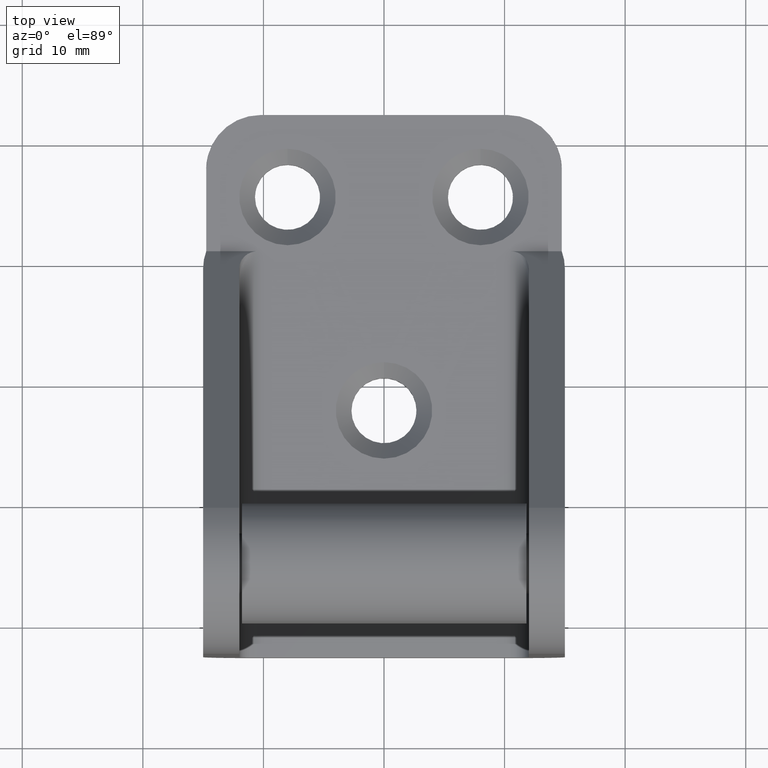
[diagram: clean part render]
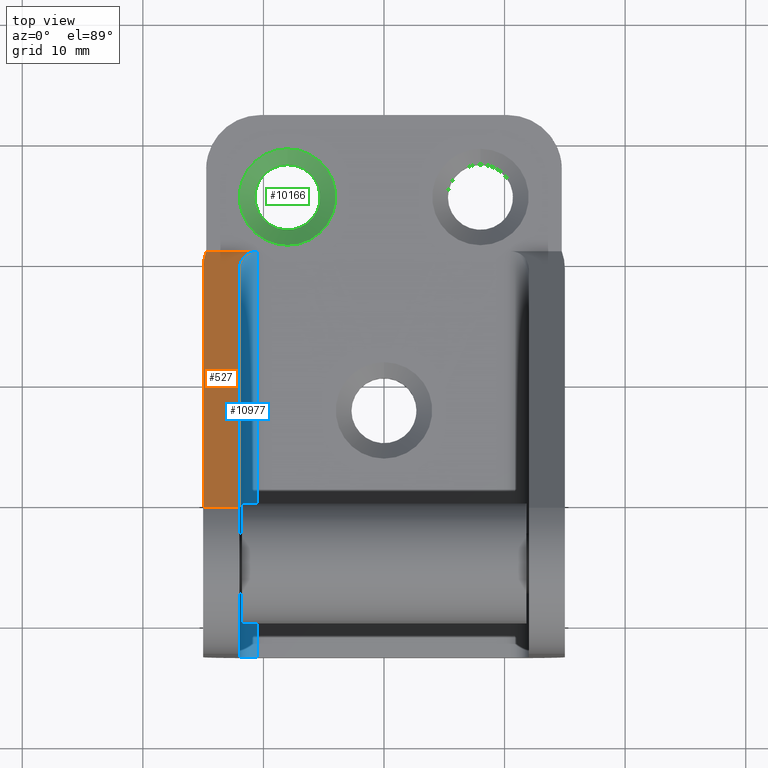
[diagram: same view with three faces highlighted in distinct colors, each labeled with its STEP entity id]
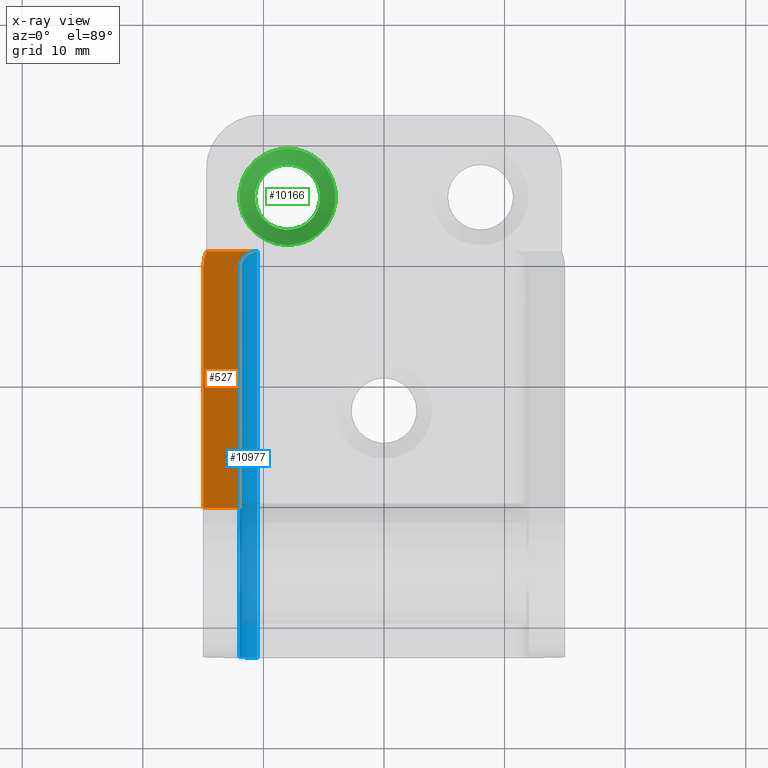
[diagram: x-ray of the same camera — body ghosted, the three highlighted faces saturated]
A machine part, top view with three faces highlighted in distinct colors.
The next image is the same camera in x-ray (body ghosted, the three faces saturated) — at least one of them is partly hidden behind the body in this view.
Their STEP definitions:

[orange] entity #527 — the highlighted planar face has unit normal (0, -0.7182, -0.6958).
#424 = ORIENTED_EDGE ( 'NONE', *, *, #4830, .T. ) ;
#527 = ADVANCED_FACE ( 'NONE', ( #12877 ), #958, .F. ) ;
#958 = PLANE ( 'NONE',  #7585 ) ;
#1008 = DIRECTION ( 'NONE',  ( -1.000000000000000000, -0.000000000000000000, -0.000000000000000000 ) ) ;
#1954 = CARTESIAN_POINT ( 'NONE',  ( -11.99999999999999645, -10.47241190139666678, 11.62066298472622883 ) ) ;
#2005 = EDGE_CURVE ( 'NONE', #3437, #13452, #3762, .T. ) ;
#2159 = CARTESIAN_POINT ( 'NONE',  ( -11.37867965644035984, 11.20000000000000107, -10.75000000000000533 ) ) ;
#2190 = CARTESIAN_POINT ( 'NONE',  ( -12.00000000000000000, 11.19999999999999574, -10.75000000000000355 ) ) ;
#2212 = CARTESIAN_POINT ( 'NONE',  ( -12.00000000000000000, 9.746819203602031578, -9.250000000000007105 ) ) ;
#2292 = DIRECTION ( 'NONE',  ( -1.000000000000000000, -0.000000000000000000, -0.000000000000000000 ) ) ;
#2357 = DIRECTION ( 'NONE',  ( 0.000000000000000000, -0.7182268712290473811, -0.6958089978180315160 ) ) ;
#2480 = ORIENTED_EDGE ( 'NONE', *, *, #9822, .T. ) ;
#2540 = CARTESIAN_POINT ( 'NONE',  ( -15.00000000000000000, 11.19999999999999751, -10.75000000000000533 ) ) ;
#3437 = VERTEX_POINT ( 'NONE', #1954 ) ;
#3597 = CARTESIAN_POINT ( 'NONE',  ( -12.00000000000000000, 9.746819203602031578, -9.250000000000007105 ) ) ;
#3762 = LINE ( 'NONE', #2190, #13620 ) ;
#4695 = CARTESIAN_POINT ( 'NONE',  ( -15.00000000000000178, 10.24305504037039505, -9.762223776282759502 ) ) ;
#4830 = EDGE_CURVE ( 'NONE', #9039, #5916, #7693, .T. ) ;
#4873 = CARTESIAN_POINT ( 'NONE',  ( 15.00000000000000000, -10.47241190139666678, 11.62066298472622705 ) ) ;
#5101 = CARTESIAN_POINT ( 'NONE',  ( -15.00000000000000000, 9.746819203602028026, -9.250000000000003553 ) ) ;
#5369 = VERTEX_POINT ( 'NONE', #10449 ) ;
#5536 =( BOUNDED_CURVE ( )  B_SPLINE_CURVE ( 3, ( #2212, #5823, #2159, #9605 ),
 .UNSPECIFIED., .F., .F. ) 
 B_SPLINE_CURVE_WITH_KNOTS ( ( 4, 4 ),
 ( 1.570796326794895448, 3.141592653589793116 ),
 .UNSPECIFIED. ) 
 CURVE ( )  GEOMETRIC_REPRESENTATION_ITEM ( )  RATIONAL_B_SPLINE_CURVE ( ( 1.000000000000000000, 0.8047378541243646044, 0.8047378541243646044, 1.000000000000000000 ) ) 
 REPRESENTATION_ITEM ( '' )  );
#5804 = EDGE_CURVE ( 'NONE', #3437, #5916, #9967, .T. ) ;
#5823 = CARTESIAN_POINT ( 'NONE',  ( -12.00000000000000355, 10.59807280555182629, -10.12867965644036339 ) ) ;
#5916 = VERTEX_POINT ( 'NONE', #15624 ) ;
#6692 = CARTESIAN_POINT ( 'NONE',  ( 15.00000000000000000, 11.19999999999999751, -10.75000000000000533 ) ) ;
#7459 = CARTESIAN_POINT ( 'NONE',  ( -14.74264068711928211, 11.19999999999999751, -10.75000000000000533 ) ) ;
#7585 = AXIS2_PLACEMENT_3D ( 'NONE', #13381, #2357, #12000 ) ;
#7693 = LINE ( 'NONE', #2540, #10179 ) ;
#8172 =( BOUNDED_CURVE ( )  B_SPLINE_CURVE ( 3, ( #9410, #11939, #4695, #13153 ),
 .UNSPECIFIED., .F., .F. ) 
 B_SPLINE_CURVE_WITH_KNOTS ( ( 4, 4 ),
 ( 4.372552070930566970, 4.712388980384689674 ),
 .UNSPECIFIED. ) 
 CURVE ( )  GEOMETRIC_REPRESENTATION_ITEM ( )  RATIONAL_B_SPLINE_CURVE ( ( 1.000000000000000000, 0.9903990397689925729, 0.9903990397689925729, 1.000000000000000000 ) ) 
 REPRESENTATION_ITEM ( '' )  );
#8341 = VERTEX_POINT ( 'NONE', #7459 ) ;
#8654 = ORIENTED_EDGE ( 'NONE', *, *, #11541, .T. ) ;
#8760 = EDGE_CURVE ( 'NONE', #8341, #9039, #8172, .T. ) ;
#8943 = VECTOR ( 'NONE', #2292, 1000.000000000000000 ) ;
#9014 = EDGE_LOOP ( 'NONE', ( #2480, #11673, #424, #14114, #12908, #8654 ) ) ;
#9039 = VERTEX_POINT ( 'NONE', #5101 ) ;
#9363 = DIRECTION ( 'NONE',  ( -9.403207657346413599E-17, 0.6958089978180315160, -0.7182268712290473811 ) ) ;
#9379 = VECTOR ( 'NONE', #1008, 1000.000000000000000 ) ;
#9410 = CARTESIAN_POINT ( 'NONE',  ( -14.74264068711928211, 11.19999999999999751, -10.75000000000000533 ) ) ;
#9605 = CARTESIAN_POINT ( 'NONE',  ( -10.50000000000000000, 11.19999999999999751, -10.75000000000000533 ) ) ;
#9822 = EDGE_CURVE ( 'NONE', #5369, #8341, #11950, .T. ) ;
#9910 = DIRECTION ( 'NONE',  ( 0.000000000000000000, -0.6958089978180316271, 0.7182268712290472701 ) ) ;
#9967 = LINE ( 'NONE', #4873, #9379 ) ;
#10179 = VECTOR ( 'NONE', #9910, 999.9999999999998863 ) ;
#10449 = CARTESIAN_POINT ( 'NONE',  ( -10.50000000000000000, 11.19999999999999751, -10.75000000000000533 ) ) ;
#11541 = EDGE_CURVE ( 'NONE', #13452, #5369, #5536, .T. ) ;
#11673 = ORIENTED_EDGE ( 'NONE', *, *, #8760, .T. ) ;
#11939 = CARTESIAN_POINT ( 'NONE',  ( -14.91338194588020194, 10.73214436633774049, -10.26707079240731524 ) ) ;
#11950 = LINE ( 'NONE', #6692, #8943 ) ;
#12000 = DIRECTION ( 'NONE',  ( 0.000000000000000000, 0.6958089978180315160, -0.7182268712290473811 ) ) ;
#12877 = FACE_OUTER_BOUND ( 'NONE', #9014, .T. ) ;
#12908 = ORIENTED_EDGE ( 'NONE', *, *, #2005, .T. ) ;
#13153 = CARTESIAN_POINT ( 'NONE',  ( -15.00000000000000000, 9.746819203602028026, -9.250000000000003553 ) ) ;
#13381 = CARTESIAN_POINT ( 'NONE',  ( 15.00000000000000000, 11.19999999999999751, -10.75000000000000533 ) ) ;
#13452 = VERTEX_POINT ( 'NONE', #3597 ) ;
#13620 = VECTOR ( 'NONE', #9363, 1000.000000000000000 ) ;
#14114 = ORIENTED_EDGE ( 'NONE', *, *, #5804, .F. ) ;
#15624 = CARTESIAN_POINT ( 'NONE',  ( -15.00000000000000000, -10.47241190139666678, 11.62066298472622705 ) ) ;

[blue] entity #10977 — the highlighted cylindrical surface (edge-blend (fillet) strip) has radius 1.5 mm, axis along (-0, -1, -0).
#230 = CARTESIAN_POINT ( 'NONE',  ( -10.50000000000000000, -22.50000000000000711, -10.75000000000000178 ) ) ;
#468 = ORIENTED_EDGE ( 'NONE', *, *, #10594, .F. ) ;
#615 = EDGE_CURVE ( 'NONE', #9306, #14667, #13634, .T. ) ;
#1320 = AXIS2_PLACEMENT_3D ( 'NONE', #4053, #1641, #4007 ) ;
#1641 = DIRECTION ( 'NONE',  ( -4.019723543970686739E-32, -1.000000000000000000, -3.070307037127091182E-16 ) ) ;
#2159 = CARTESIAN_POINT ( 'NONE',  ( -11.37867965644035984, 11.20000000000000107, -10.75000000000000533 ) ) ;
#2212 = CARTESIAN_POINT ( 'NONE',  ( -12.00000000000000000, 9.746819203602031578, -9.250000000000007105 ) ) ;
#2456 = VECTOR ( 'NONE', #2955, 1000.000000000000000 ) ;
#2722 = AXIS2_PLACEMENT_3D ( 'NONE', #12317, #9999, #9951 ) ;
#2955 = DIRECTION ( 'NONE',  ( 4.019723543970686739E-32, 1.000000000000000000, 3.070307037127091182E-16 ) ) ;
#3373 = EDGE_LOOP ( 'NONE', ( #12407, #468, #4251, #11716 ) ) ;
#3443 = CYLINDRICAL_SURFACE ( 'NONE', #1320, 1.499999999999999556 ) ;
#3597 = CARTESIAN_POINT ( 'NONE',  ( -12.00000000000000000, 9.746819203602031578, -9.250000000000007105 ) ) ;
#4007 = DIRECTION ( 'NONE',  ( 0.000000000000000000, 0.000000000000000000, -1.000000000000000000 ) ) ;
#4053 = CARTESIAN_POINT ( 'NONE',  ( -10.50000000000000000, -22.50000000000000711, -9.250000000000017764 ) ) ;
#4251 = ORIENTED_EDGE ( 'NONE', *, *, #11541, .F. ) ;
#4382 = LINE ( 'NONE', #9058, #7803 ) ;
#5369 = VERTEX_POINT ( 'NONE', #10449 ) ;
#5536 =( BOUNDED_CURVE ( )  B_SPLINE_CURVE ( 3, ( #2212, #5823, #2159, #9605 ),
 .UNSPECIFIED., .F., .F. ) 
 B_SPLINE_CURVE_WITH_KNOTS ( ( 4, 4 ),
 ( 1.570796326794895448, 3.141592653589793116 ),
 .UNSPECIFIED. ) 
 CURVE ( )  GEOMETRIC_REPRESENTATION_ITEM ( )  RATIONAL_B_SPLINE_CURVE ( ( 1.000000000000000000, 0.8047378541243646044, 0.8047378541243646044, 1.000000000000000000 ) ) 
 REPRESENTATION_ITEM ( '' )  );
#5823 = CARTESIAN_POINT ( 'NONE',  ( -12.00000000000000355, 10.59807280555182629, -10.12867965644036339 ) ) ;
#6987 = LINE ( 'NONE', #13802, #2456 ) ;
#7803 = VECTOR ( 'NONE', #10230, 1000.000000000000000 ) ;
#9058 = CARTESIAN_POINT ( 'NONE',  ( -10.50000000000000000, -22.50000000000000711, -10.75000000000001599 ) ) ;
#9306 = VERTEX_POINT ( 'NONE', #230 ) ;
#9605 = CARTESIAN_POINT ( 'NONE',  ( -10.50000000000000000, 11.19999999999999751, -10.75000000000000533 ) ) ;
#9951 = DIRECTION ( 'NONE',  ( 0.000000000000000000, 0.000000000000000000, 1.000000000000000000 ) ) ;
#9999 = DIRECTION ( 'NONE',  ( -0.000000000000000000, 1.000000000000000000, 1.692413147294445230E-16 ) ) ;
#10230 = DIRECTION ( 'NONE',  ( -4.019723543970686739E-32, -1.000000000000000000, -3.070307037127091182E-16 ) ) ;
#10449 = CARTESIAN_POINT ( 'NONE',  ( -10.50000000000000000, 11.19999999999999751, -10.75000000000000533 ) ) ;
#10594 = EDGE_CURVE ( 'NONE', #5369, #9306, #4382, .T. ) ;
#10697 = CARTESIAN_POINT ( 'NONE',  ( -12.00000000000000000, -22.50000000000000711, -9.250000000000017764 ) ) ;
#10977 = ADVANCED_FACE ( 'NONE', ( #12907 ), #3443, .F. ) ;
#11541 = EDGE_CURVE ( 'NONE', #13452, #5369, #5536, .T. ) ;
#11716 = ORIENTED_EDGE ( 'NONE', *, *, #14494, .F. ) ;
#12317 = CARTESIAN_POINT ( 'NONE',  ( -10.50000000000000000, -22.50000000000000355, -9.250000000000017764 ) ) ;
#12407 = ORIENTED_EDGE ( 'NONE', *, *, #615, .F. ) ;
#12907 = FACE_OUTER_BOUND ( 'NONE', #3373, .T. ) ;
#13452 = VERTEX_POINT ( 'NONE', #3597 ) ;
#13634 = CIRCLE ( 'NONE', #2722, 1.499999999999999556 ) ;
#13802 = CARTESIAN_POINT ( 'NONE',  ( -12.00000000000000000, 11.19999999999999396, -9.250000000000007105 ) ) ;
#14494 = EDGE_CURVE ( 'NONE', #14667, #13452, #6987, .T. ) ;
#14667 = VERTEX_POINT ( 'NONE', #10697 ) ;

[green] entity #10166 — the highlighted conical surface has half-angle 45 deg.
#507 = CARTESIAN_POINT ( 'NONE',  ( -8.000000000000000000, 15.70000000000000284, -10.75000000000000355 ) ) ;
#814 = CARTESIAN_POINT ( 'NONE',  ( -8.000000000000000000, 15.70000000000000284, -12.05000000000001847 ) ) ;
#850 = ORIENTED_EDGE ( 'NONE', *, *, #14189, .F. ) ;
#1737 = DIRECTION ( 'NONE',  ( 0.000000000000000000, 1.000000000000000000, 4.336808689942009847E-16 ) ) ;
#2059 = DIRECTION ( 'NONE',  ( 1.000000000000000000, 0.000000000000000000, 0.000000000000000000 ) ) ;
#2932 = EDGE_LOOP ( 'NONE', ( #850 ) ) ;
#3447 = DIRECTION ( 'NONE',  ( -0.000000000000000000, -0.000000000000000000, 1.000000000000000000 ) ) ;
#4025 = CIRCLE ( 'NONE', #6392, 4.000000000000007105 ) ;
#4152 = CARTESIAN_POINT ( 'NONE',  ( -10.70000000000000107, 15.70000000000000284, -12.05000000000001847 ) ) ;
#4931 = CIRCLE ( 'NONE', #14820, 2.700000000000001066 ) ;
#5952 = ORIENTED_EDGE ( 'NONE', *, *, #8873, .F. ) ;
#6007 = VERTEX_POINT ( 'NONE', #4152 ) ;
#6392 = AXIS2_PLACEMENT_3D ( 'NONE', #507, #6525, #1737 ) ;
#6525 = DIRECTION ( 'NONE',  ( 0.000000000000000000, 3.070307037127091182E-16, -1.000000000000000000 ) ) ;
#8873 = EDGE_CURVE ( 'NONE', #14148, #14148, #4025, .T. ) ;
#8891 = EDGE_LOOP ( 'NONE', ( #5952 ) ) ;
#10166 = ADVANCED_FACE ( 'NONE', ( #14626, #10265 ), #12902, .F. ) ;
#10265 = FACE_OUTER_BOUND ( 'NONE', #8891, .T. ) ;
#11710 = DIRECTION ( 'NONE',  ( -1.000000000000000000, 0.000000000000000000, 0.000000000000000000 ) ) ;
#12726 = CARTESIAN_POINT ( 'NONE',  ( -8.000000000000000000, 19.70000000000000995, -10.75000000000000178 ) ) ;
#12902 = CONICAL_SURFACE ( 'NONE', #13402, 4.000000000000003553, 0.7853981633974442822 ) ;
#12924 = DIRECTION ( 'NONE',  ( -0.000000000000000000, -0.000000000000000000, 1.000000000000000000 ) ) ;
#13402 = AXIS2_PLACEMENT_3D ( 'NONE', #15213, #12924, #2059 ) ;
#14148 = VERTEX_POINT ( 'NONE', #12726 ) ;
#14189 = EDGE_CURVE ( 'NONE', #6007, #6007, #4931, .T. ) ;
#14626 = FACE_BOUND ( 'NONE', #2932, .T. ) ;
#14820 = AXIS2_PLACEMENT_3D ( 'NONE', #814, #3447, #11710 ) ;
#15213 = CARTESIAN_POINT ( 'NONE',  ( -8.000000000000000000, 15.70000000000000284, -10.75000000000000533 ) ) ;